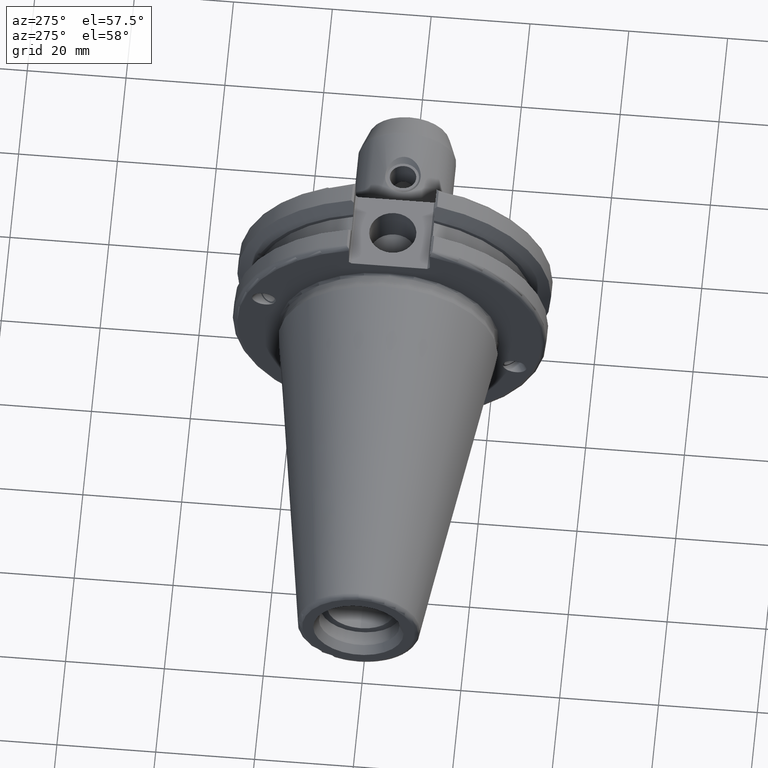
[diagram: clean part render]
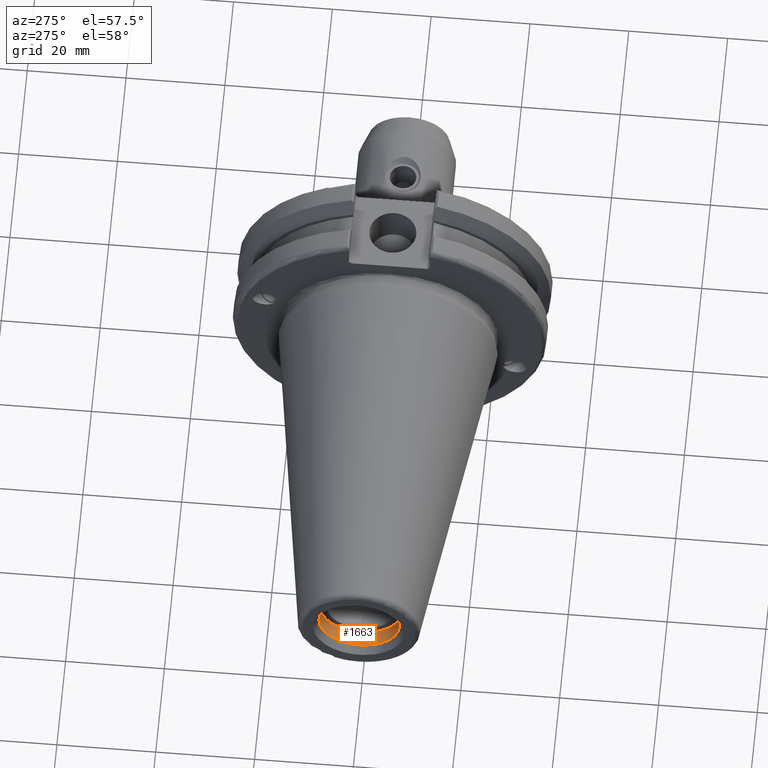
[diagram: same view with one face highlighted and labeled with its STEP entity id]
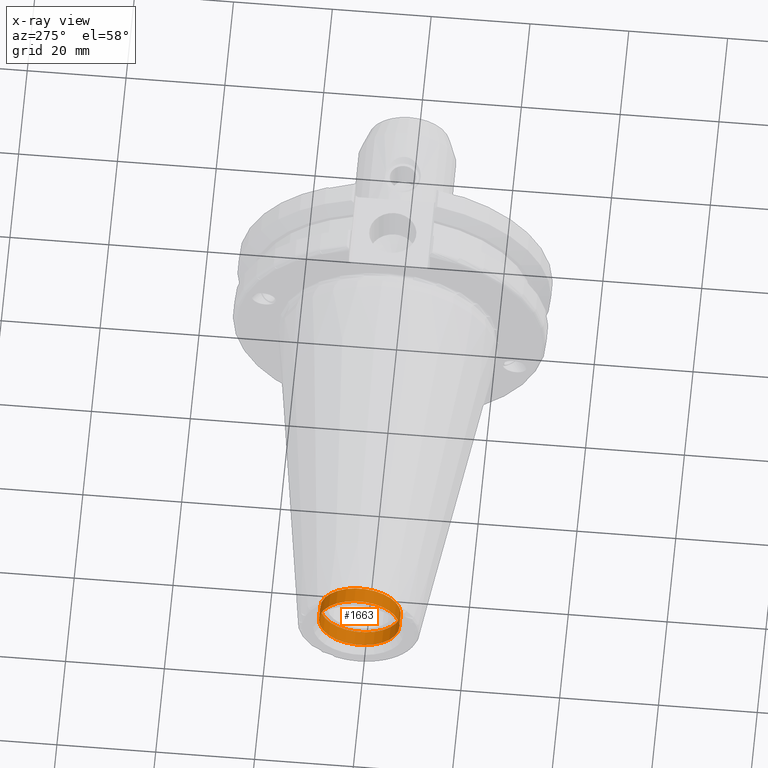
[diagram: x-ray of the same camera — body ghosted, the highlighted face saturated]
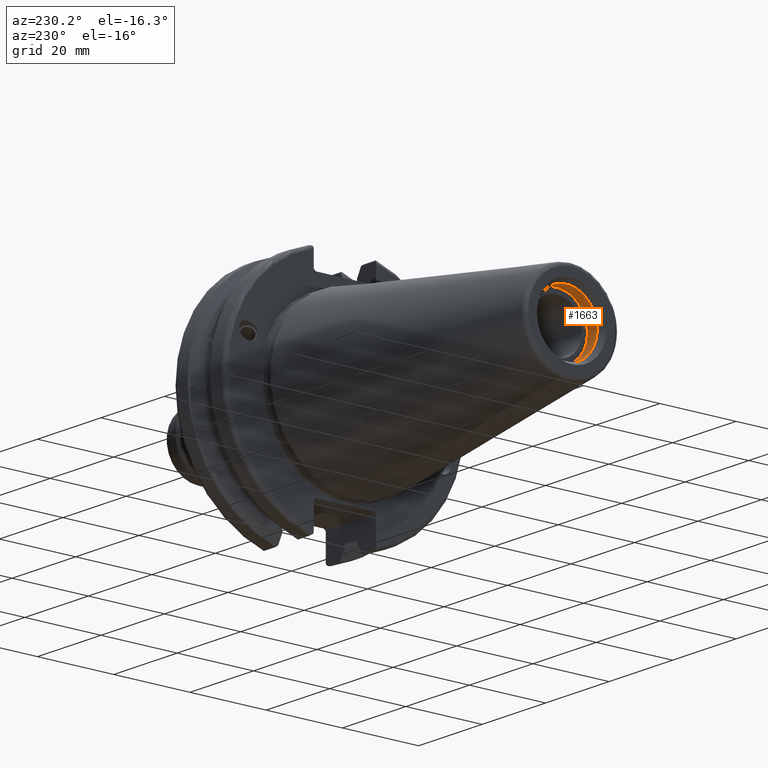
[diagram: same view with one face highlighted and labeled with its STEP entity id]
A machine part, auxiliary view. The second image highlights one B-rep face of the part: STEP entity #1663.
The next image is the same camera in x-ray: the body ghosted, the highlighted face saturated — about 0% of this face is hidden behind the body in this view.
A second angle (auxiliary view) of the same face is appended — the face is thin or edge-on in the first view.
In plain terms, the highlighted cylindrical surface (bore or boss wall) has radius 8.15 mm, axis along (1, 0, 0).
Its self-contained STEP definition (entity closure, byte-faithful):
#181=CIRCLE('',#1867,8.14999999999999);
#182=CIRCLE('',#1869,8.14999999999999);
#270=FACE_OUTER_BOUND('',#381,.T.);
#381=EDGE_LOOP('',(#1522,#1523,#1524,#1525));
#521=LINE('',#3305,#620);
#620=VECTOR('',#2329,8.14999999999999);
#803=VERTEX_POINT('',#3301);
#804=VERTEX_POINT('',#3304);
#1046=EDGE_CURVE('',#803,#803,#181,.T.);
#1047=EDGE_CURVE('',#803,#804,#521,.T.);
#1048=EDGE_CURVE('',#804,#804,#182,.T.);
#1522=ORIENTED_EDGE('',*,*,#1046,.T.);
#1523=ORIENTED_EDGE('',*,*,#1047,.T.);
#1524=ORIENTED_EDGE('',*,*,#1048,.F.);
#1525=ORIENTED_EDGE('',*,*,#1047,.F.);
#1576=CYLINDRICAL_SURFACE('',#1868,8.14999999999999);
#1663=ADVANCED_FACE('',(#270),#1576,.F.);
#1867=AXIS2_PLACEMENT_3D('',#3302,#2325,#2326);
#1868=AXIS2_PLACEMENT_3D('',#3303,#2327,#2328);
#1869=AXIS2_PLACEMENT_3D('',#3306,#2330,#2331);
#2325=DIRECTION('center_axis',(1.,0.,0.));
#2326=DIRECTION('ref_axis',(0.,0.,-1.));
#2327=DIRECTION('center_axis',(1.,0.,0.));
#2328=DIRECTION('ref_axis',(0.,1.,0.));
#2329=DIRECTION('',(-1.,0.,0.));
#2330=DIRECTION('center_axis',(1.,0.,0.));
#2331=DIRECTION('ref_axis',(0.,0.,-1.));
#3301=CARTESIAN_POINT('',(-63.45,-8.14999999999999,-9.98087141305092E-16));
#3302=CARTESIAN_POINT('Origin',(-63.45,0.,0.));
#3303=CARTESIAN_POINT('Origin',(-64.9839745962156,0.,0.));
#3304=CARTESIAN_POINT('',(-66.5179491924311,-8.14999999999999,-9.98087141305092E-16));
#3305=CARTESIAN_POINT('',(-64.9839745962156,-8.14999999999999,-9.98087141305092E-16));
#3306=CARTESIAN_POINT('Origin',(-66.5179491924311,0.,0.));